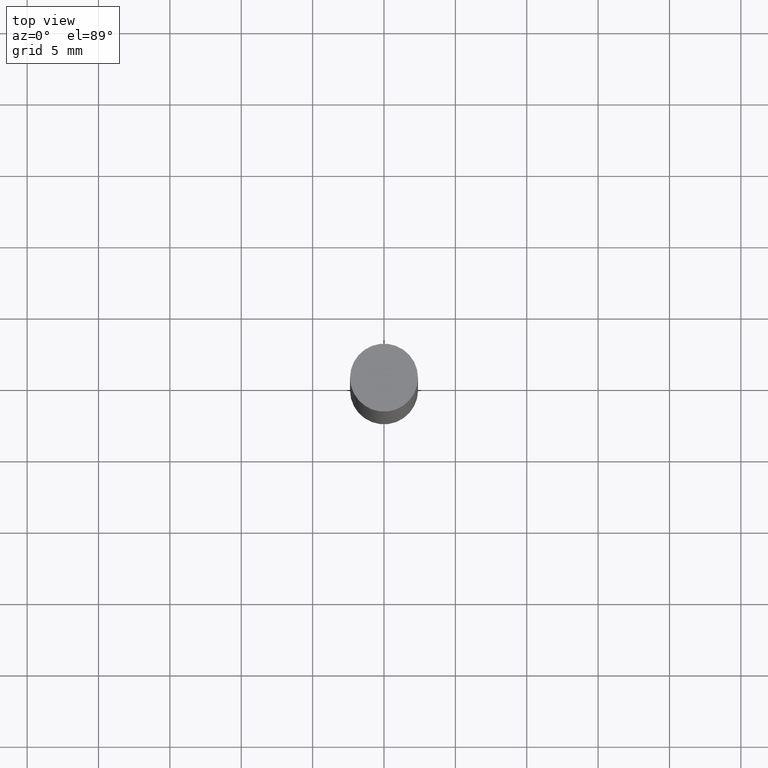
[diagram: clean part render]
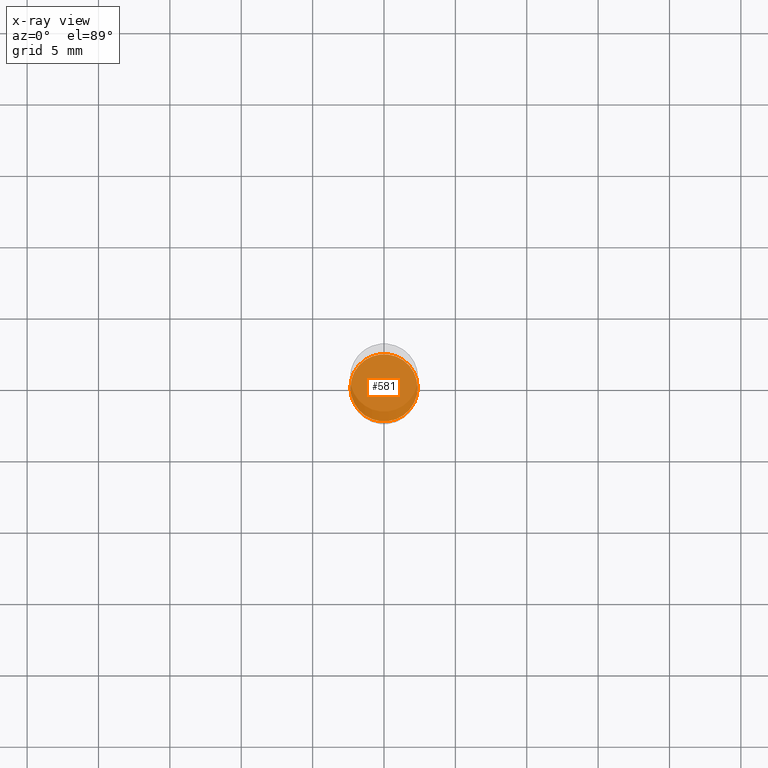
[diagram: x-ray — body ghosted, one internal face saturated and labeled with its STEP entity id]
A machine part, top view, then the same camera in x-ray: the body is ghosted and one INTERNAL B-rep face — a face not visible from any outside direction — is saturated and labeled: STEP entity #581.
In plain terms, the highlighted planar face has unit normal (-0, 0, 1).
Its self-contained STEP definition (entity closure, byte-faithful):
#4 = DIRECTION ( 'NONE',  ( -2.438088387897960049E-29, 3.491481338843145188E-15, 1.000000000000000000 ) ) ;
#33 = ORIENTED_EDGE ( 'NONE', *, *, #462, .F. ) ;
#56 = CIRCLE ( 'NONE', #240, 0.09274999999999999911 ) ;
#112 = CARTESIAN_POINT ( 'NONE',  ( 3.973886810050848091E-29, -5.673657175620113002E-15, -1.625000000000000222 ) ) ;
#177 = DIRECTION ( 'NONE',  ( 1.000000000000000000, -6.982962677686265922E-15, 4.876176775795935793E-29 ) ) ;
#188 = VERTEX_POINT ( 'NONE', #642 ) ;
#191 = EDGE_LOOP ( 'NONE', ( #33, #297 ) ) ;
#240 = AXIS2_PLACEMENT_3D ( 'NONE', #371, #359, #569 ) ;
#257 = DIRECTION ( 'NONE',  ( -2.445468806185136597E-29, 3.491481338843145583E-15, 1.000000000000000000 ) ) ;
#297 = ORIENTED_EDGE ( 'NONE', *, *, #488, .F. ) ;
#359 = DIRECTION ( 'NONE',  ( -2.445468806185136597E-29, 3.491481338843145583E-15, 1.000000000000000000 ) ) ;
#371 = CARTESIAN_POINT ( 'NONE',  ( 3.973886810050848091E-29, -5.673657175620113002E-15, -1.625000000000000222 ) ) ;
#380 = FACE_OUTER_BOUND ( 'NONE', #191, .T. ) ;
#437 = AXIS2_PLACEMENT_3D ( 'NONE', #112, #4, #177 ) ;
#453 = VERTEX_POINT ( 'NONE', #573 ) ;
#462 = EDGE_CURVE ( 'NONE', #188, #453, #482, .T. ) ;
#469 = DIRECTION ( 'NONE',  ( 1.000000000000000000, -6.982962677686261977E-15, 0.000000000000000000 ) ) ;
#482 = CIRCLE ( 'NONE', #561, 0.09274999999999999911 ) ;
#488 = EDGE_CURVE ( 'NONE', #453, #188, #56, .T. ) ;
#535 = PLANE ( 'NONE',  #437 ) ;
#561 = AXIS2_PLACEMENT_3D ( 'NONE', #624, #257, #469 ) ;
#569 = DIRECTION ( 'NONE',  ( 1.000000000000000000, -6.982962677686261977E-15, 0.000000000000000000 ) ) ;
#573 = CARTESIAN_POINT ( 'NONE',  ( -0.09274999999999999911, -5.009330333854396895E-15, -1.625000000000000222 ) ) ;
#581 = ADVANCED_FACE ( 'NONE', ( #380 ), #535, .F. ) ;
#624 = CARTESIAN_POINT ( 'NONE',  ( 3.973886810050848091E-29, -5.673657175620113002E-15, -1.625000000000000222 ) ) ;
#642 = CARTESIAN_POINT ( 'NONE',  ( 0.09274999999999999911, -6.321326963975513703E-15, -1.625000000000000222 ) ) ;